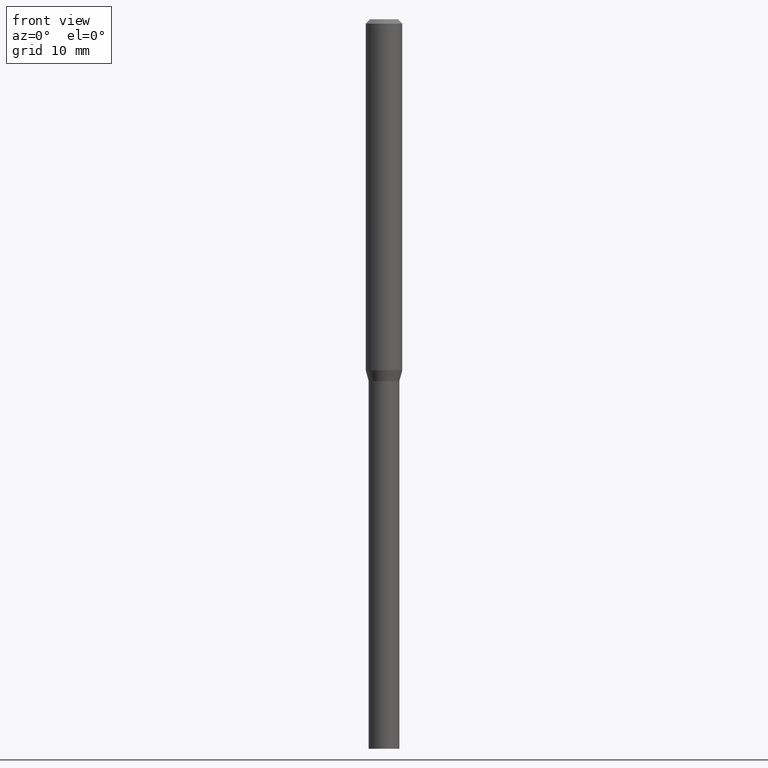
[diagram: clean part render]
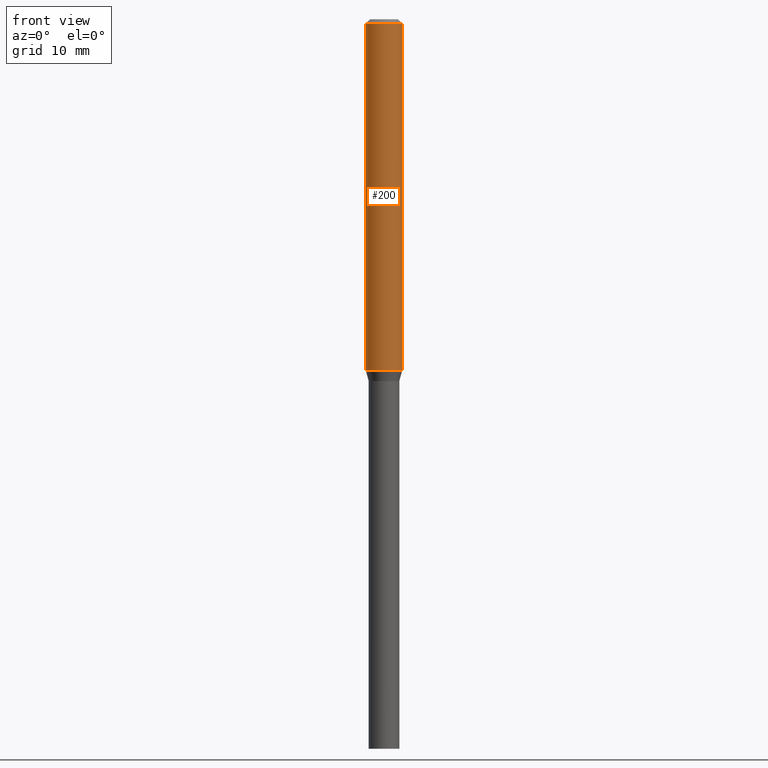
[diagram: same view with one face highlighted and labeled with its STEP entity id]
A machine part, front view. The second image highlights one B-rep face of the part: STEP entity #200.
In plain terms, the highlighted cylindrical surface (edge-blend (fillet) strip) has radius 1.5875 mm, axis along (-0, 0, 1).
Its self-contained STEP definition (entity closure, byte-faithful):
#17 = VECTOR ( 'NONE', #380, 39.37007874015748143 ) ;
#29 = CARTESIAN_POINT ( 'NONE',  ( 2.941115181339488673E-29, -4.199133002663083493E-15, -1.202679491924309785 ) ) ;
#32 = DIRECTION ( 'NONE',  ( 1.000000000000000000, -6.982962677686266711E-15, 4.876176775795935793E-29 ) ) ;
#35 = EDGE_CURVE ( 'NONE', #196, #124, #57, .T. ) ;
#36 = CARTESIAN_POINT ( 'NONE',  ( 0.000000000000000000, 0.000000000000000000, 0.000000000000000000 ) ) ;
#51 = ORIENTED_EDGE ( 'NONE', *, *, #457, .F. ) ;
#57 = LINE ( 'NONE', #201, #17 ) ;
#63 = LINE ( 'NONE', #427, #303 ) ;
#66 = DIRECTION ( 'NONE',  ( -2.445468806185136597E-29, 3.491481338843145583E-15, 1.000000000000000000 ) ) ;
#99 = DIRECTION ( 'NONE',  ( 1.000000000000000000, -6.982962677686270655E-15, 0.000000000000000000 ) ) ;
#105 = CARTESIAN_POINT ( 'NONE',  ( 3.668203209277705088E-31, -5.237222008264718399E-17, -0.01499999999999999944 ) ) ;
#124 = VERTEX_POINT ( 'NONE', #248 ) ;
#135 = FACE_OUTER_BOUND ( 'NONE', #227, .T. ) ;
#139 = DIRECTION ( 'NONE',  ( -2.445468806185136597E-29, 3.491481338843145583E-15, 1.000000000000000000 ) ) ;
#142 = AXIS2_PLACEMENT_3D ( 'NONE', #36, #351, #32 ) ;
#146 = DIRECTION ( 'NONE',  ( -2.445468806185136877E-29, 3.491481338843145188E-15, 1.000000000000000000 ) ) ;
#152 = CIRCLE ( 'NONE', #391, 0.06250000000000000000 ) ;
#158 = VERTEX_POINT ( 'NONE', #419 ) ;
#159 = EDGE_CURVE ( 'NONE', #196, #448, #152, .T. ) ;
#160 = ORIENTED_EDGE ( 'NONE', *, *, #461, .T. ) ;
#196 = VERTEX_POINT ( 'NONE', #217 ) ;
#200 = ADVANCED_FACE ( 'NONE', ( #135 ), #382, .T. ) ;
#201 = CARTESIAN_POINT ( 'NONE',  ( -0.06250000000000000000, 4.440892098500626162E-16, -3.074334431409316114E-30 ) ) ;
#217 = CARTESIAN_POINT ( 'NONE',  ( -0.06250000000000000000, -3.755043792813020877E-15, -1.202679491924309785 ) ) ;
#227 = EDGE_LOOP ( 'NONE', ( #265, #334, #160, #51 ) ) ;
#248 = CARTESIAN_POINT ( 'NONE',  ( -0.06250000000000000000, -1.681663401522802867E-15, -0.01499999999999999944 ) ) ;
#249 = DIRECTION ( 'NONE',  ( 1.000000000000000000, -6.982962677686266711E-15, 0.000000000000000000 ) ) ;
#265 = ORIENTED_EDGE ( 'NONE', *, *, #35, .F. ) ;
#303 = VECTOR ( 'NONE', #146, 39.37007874015748143 ) ;
#334 = ORIENTED_EDGE ( 'NONE', *, *, #159, .T. ) ;
#351 = DIRECTION ( 'NONE',  ( -2.445468806185136597E-29, 3.491481338843145583E-15, 1.000000000000000000 ) ) ;
#354 = CIRCLE ( 'NONE', #465, 0.06250000000000000000 ) ;
#380 = DIRECTION ( 'NONE',  ( -2.445468806185136877E-29, 3.491481338843145188E-15, 1.000000000000000000 ) ) ;
#382 = CYLINDRICAL_SURFACE ( 'NONE', #142, 0.06250000000000000000 ) ;
#383 = CARTESIAN_POINT ( 'NONE',  ( 0.06250000000000000000, -4.635568170018474374E-15, -1.202679491924309785 ) ) ;
#391 = AXIS2_PLACEMENT_3D ( 'NONE', #29, #139, #99 ) ;
#419 = CARTESIAN_POINT ( 'NONE',  ( 0.06250000000000000000, -4.888073874380388472E-16, -0.01499999999999999944 ) ) ;
#427 = CARTESIAN_POINT ( 'NONE',  ( 0.06250000000000000000, -4.364351673553916694E-16, 3.047610484872459871E-30 ) ) ;
#448 = VERTEX_POINT ( 'NONE', #383 ) ;
#457 = EDGE_CURVE ( 'NONE', #124, #158, #354, .T. ) ;
#461 = EDGE_CURVE ( 'NONE', #448, #158, #63, .T. ) ;
#465 = AXIS2_PLACEMENT_3D ( 'NONE', #105, #66, #249 ) ;